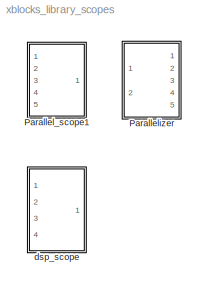
MODEL xblocks_library_scopes
KIND library
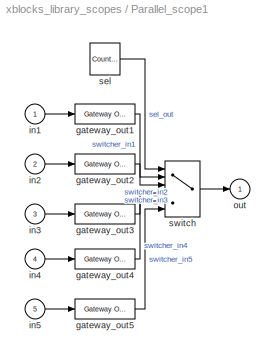
BLOCK [SubSystem] Parallel_scope1
  AttributesFormatString = Sample Period = 40
  FunctionWithSeparateData = off
  MaskHideContents = off
  MinAlgLoopOccurrences = off
  Opaque = off
  Ports = [5, 1]
  PropExecContextOutsideSubsystem = off
  RTWSystemCode = Auto
  RequestExecContextInheritance = off
  SID = 2994
  UserData = DataTag0
  UserDataPersistent = on
BLOCK [Reference] Parallel_scope1/gateway_out1  REF=xbsIndex_r4/Gateway Out
  DACChannel = '1'
  LOCs = {}
  Ports = [1, 1]
  SID = 3016
  SourceBlock = xbsIndex_r4/Gateway Out
  SourceType = Xilinx Gateway Out Block
  UseAsDAC = off
  block_type = gatewayout
  has_advanced_control = 0
  hdl_port = off
  infoedit = Gateway out block.  Converts Xilinx fixed-point or floating-point type inputs into ouputs of type Simulink integer, single, double, or fixed-point.<br><br>Hardware notes:  In hardware these blocks become top level output ports or are discarded, depending on how they are configured.  <repeated x9 — deduplicated; at blocks: gateway_out1, gateway_out2, gateway_out3, gateway_out4, gateway_out5>
  inherit_from_input = off
  locs_specified = off
  sg_icon_stat = 60,20,1,1,white,grey,1,632ec840,right,,[ ],[ ]
  sg_mask_display = fprintf('','COMMENT: begin icon graphics');\npatch([0 60 60 0 0 ],[0 0 20 20 0 ],[0.88 0.88 0.88 ]);\nplot([0 60 60 0 0 ],[0 0 20 20 0 ]);\npatch([25.55 28.44 30.44 32.44 34.44 30.44 27.55 25.55 ],[12.22 12.22 14.22 12.22 14.22 14.22 14.22 12.22 ],[1 1 1 ]);\npatch([27.55 30.44 28.44 25.55 27.55 ],[10.22 10.22 12.22 12.22 10.22 ],[0.964 0.964 0.964 ]);\npatch([25.55 28.44 30.44 27.55 25.55 ],[8.22...<+393ch>  <repeated x9 — deduplicated; at blocks: gateway_out1, gateway_out2, gateway_out3, gateway_out4, gateway_out5>
  sggui_pos = -1,-1,-1,-1
  timing_constraint = None
  xl_area = [0,0,0,0,0,0,0]
  xl_use_area = off
BLOCK [Reference] Parallel_scope1/gateway_out2  REF=xbsIndex_r4/Gateway Out
  DACChannel = '1'
  LOCs = {}
  Ports = [1, 1]
  SID = 3017
  SourceBlock = xbsIndex_r4/Gateway Out
  SourceType = Xilinx Gateway Out Block
  UseAsDAC = off
  block_type = gatewayout
  has_advanced_control = 0
  hdl_port = off
  inherit_from_input = off
  locs_specified = off
  sg_icon_stat = 60,20,1,1,white,grey,1,632ec840,right,,[ ],[ ]
  sggui_pos = -1,-1,-1,-1
  timing_constraint = None
  xl_area = [0,0,0,0,0,0,0]
  xl_use_area = off
BLOCK [Reference] Parallel_scope1/gateway_out3  REF=xbsIndex_r4/Gateway Out
  DACChannel = '1'
  LOCs = {}
  Ports = [1, 1]
  SID = 3018
  SourceBlock = xbsIndex_r4/Gateway Out
  SourceType = Xilinx Gateway Out Block
  UseAsDAC = off
  block_type = gatewayout
  has_advanced_control = 0
  hdl_port = off
  inherit_from_input = off
  locs_specified = off
  sg_icon_stat = 60,20,1,1,white,grey,1,632ec840,right,,[ ],[ ]
  sggui_pos = -1,-1,-1,-1
  timing_constraint = None
  xl_area = [0,0,0,0,0,0,0]
  xl_use_area = off
BLOCK [Reference] Parallel_scope1/gateway_out4  REF=xbsIndex_r4/Gateway Out
  DACChannel = '1'
  LOCs = {}
  Ports = [1, 1]
  SID = 3019
  SourceBlock = xbsIndex_r4/Gateway Out
  SourceType = Xilinx Gateway Out Block
  UseAsDAC = off
  block_type = gatewayout
  has_advanced_control = 0
  hdl_port = off
  inherit_from_input = off
  locs_specified = off
  sg_icon_stat = 60,20,1,1,white,grey,1,632ec840,right,,[ ],[ ]
  sggui_pos = -1,-1,-1,-1
  timing_constraint = None
  xl_area = [0,0,0,0,0,0,0]
  xl_use_area = off
BLOCK [Reference] Parallel_scope1/gateway_out5  REF=xbsIndex_r4/Gateway Out
  DACChannel = '1'
  LOCs = {}
  Ports = [1, 1]
  SID = 3020
  SourceBlock = xbsIndex_r4/Gateway Out
  SourceType = Xilinx Gateway Out Block
  UseAsDAC = off
  block_type = gatewayout
  has_advanced_control = 0
  hdl_port = off
  inherit_from_input = off
  locs_specified = off
  sg_icon_stat = 60,20,1,1,white,grey,1,632ec840,right,,[ ],[ ]
  sggui_pos = -1,-1,-1,-1
  timing_constraint = None
  xl_area = [0,0,0,0,0,0,0]
  xl_use_area = off
BLOCK [Inport] Parallel_scope1/in1
  IconDisplay = Port number
  SID = 2995
BLOCK [Inport] Parallel_scope1/in2
  IconDisplay = Port number
  Port = 2
  SID = 2996
BLOCK [Inport] Parallel_scope1/in3
  IconDisplay = Port number
  Port = 3
  SID = 2997
BLOCK [Inport] Parallel_scope1/in4
  IconDisplay = Port number
  Port = 4
  SID = 2998
BLOCK [Inport] Parallel_scope1/in5
  IconDisplay = Port number
  Port = 5
  SID = 2999
BLOCK [Outport] Parallel_scope1/out
  IconDisplay = Port number
  SID = 3007
BLOCK [Reference] Parallel_scope1/sel  REF=simulink/Sources/Counter\nLimited
  Ports = [0, 1]
  SID = 3015
  SourceBlock = simulink/Sources/Counter\nLimited
  SourceType = Counter Limited
  tsamp = 8
  uplimit = 4
BLOCK [MultiPortSwitch] Parallel_scope1/switch
  DataPortOrder = Zero-based contiguous
  InputSameDT = off
  Inputs = 5
  Ports = [6, 1]
  SID = 3021
  SaturateOnIntegerOverflow = off
  zeroidx = on
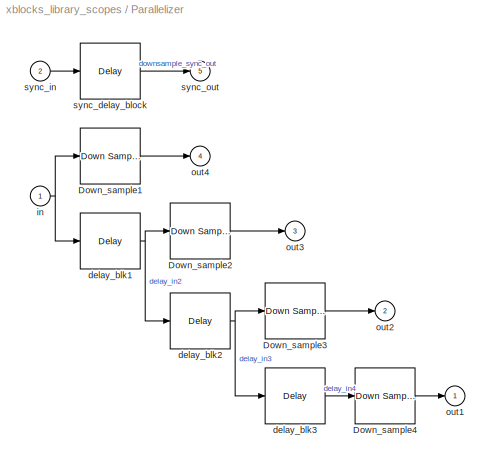
BLOCK [SubSystem] Parallelizer
  AttributesFormatString = Sample Period = 2
  FunctionWithSeparateData = off
  MaskHideContents = off
  MinAlgLoopOccurrences = off
  Opaque = off
  Ports = [2, 5]
  PropExecContextOutsideSubsystem = off
  RTWSystemCode = Auto
  RequestExecContextInheritance = off
  SID = 2900
  UserData = DataTag1
  UserDataPersistent = on
BLOCK [Reference] Parallelizer/Down_sample1  REF=xbsIndex_r4/Down Sample
  Ports = [1, 1]
  SID = 3028
  SourceBlock = xbsIndex_r4/Down Sample
  SourceType = Xilinx Down Sampler Block
  block_type = dsamp
  dbl_ovrd = off
  en = off
  has_advanced_control = 0
  infoedit = Hardware notes: Sample and Latency controls determine the hardware implementation.  The cost in hardware of different implementations varies considerably; press Help for details.
  latency = 1
  sample_phase = Last Value of Frame  (most efficient)
  sample_ratio = 4
  sg_icon_stat = 60,56,1,1,white,blue,0,475c248c,right,,[ ],[ ]
  sg_mask_display = fprintf('','COMMENT: begin icon graphics');\npatch([0 60 60 0 0 ],[0 0 56 56 0 ],[0.77 0.82 0.91 ]);\nplot([0 60 60 0 0 ],[0 0 56 56 0 ]);\npatch([12.2 23.76 31.76 39.76 47.76 31.76 20.2 12.2 ],[36.88 36.88 44.88 36.88 44.88 44.88 44.88 36.88 ],[1 1 1 ]);\npatch([20.2 31.76 23.76 12.2 20.2 ],[28.88 28.88 36.88 36.88 28.88 ],[0.931 0.946 0.973 ]);\npatch([12.2 23.76 31.76 20.2 12.2 ],[20.88 20.88 2...<+415ch>  <repeated x4 — deduplicated; at blocks: Down_sample1, Down_sample2, Down_sample3, Down_sample4>
  sggui_pos = -1,-1,-1,-1
  xl_area = [0,0,0,0,0,0,0]
  xl_use_area = off
BLOCK [Reference] Parallelizer/Down_sample2  REF=xbsIndex_r4/Down Sample
  Ports = [1, 1]
  SID = 3029
  SourceBlock = xbsIndex_r4/Down Sample
  SourceType = Xilinx Down Sampler Block
  block_type = dsamp
  dbl_ovrd = off
  en = off
  has_advanced_control = 0
  infoedit = Hardware notes: Sample and Latency controls determine the hardware implementation.  The cost in hardware of different implementations varies considerably; press Help for details.
  latency = 1
  sample_phase = Last Value of Frame  (most efficient)
  sample_ratio = 4
  sg_icon_stat = 60,56,1,1,white,blue,0,475c248c,right,,[ ],[ ]
  sggui_pos = -1,-1,-1,-1
  xl_area = [0,0,0,0,0,0,0]
  xl_use_area = off
BLOCK [Reference] Parallelizer/Down_sample3  REF=xbsIndex_r4/Down Sample
  Ports = [1, 1]
  SID = 3030
  SourceBlock = xbsIndex_r4/Down Sample
  SourceType = Xilinx Down Sampler Block
  block_type = dsamp
  dbl_ovrd = off
  en = off
  has_advanced_control = 0
  infoedit = Hardware notes: Sample and Latency controls determine the hardware implementation.  The cost in hardware of different implementations varies considerably; press Help for details.
  latency = 1
  sample_phase = Last Value of Frame  (most efficient)
  sample_ratio = 4
  sg_icon_stat = 60,56,1,1,white,blue,0,475c248c,right,,[ ],[ ]
  sggui_pos = -1,-1,-1,-1
  xl_area = [0,0,0,0,0,0,0]
  xl_use_area = off
BLOCK [Reference] Parallelizer/Down_sample4  REF=xbsIndex_r4/Down Sample
  Ports = [1, 1]
  SID = 3031
  SourceBlock = xbsIndex_r4/Down Sample
  SourceType = Xilinx Down Sampler Block
  block_type = dsamp
  dbl_ovrd = off
  en = off
  has_advanced_control = 0
  infoedit = Hardware notes: Sample and Latency controls determine the hardware implementation.  The cost in hardware of different implementations varies considerably; press Help for details.
  latency = 1
  sample_phase = Last Value of Frame  (most efficient)
  sample_ratio = 4
  sg_icon_stat = 60,56,1,1,white,blue,0,475c248c,right,,[ ],[ ]
  sggui_pos = -1,-1,-1,-1
  xl_area = [0,0,0,0,0,0,0]
  xl_use_area = off
BLOCK [Reference] Parallelizer/delay_blk1  REF=xbsIndex_r4/Delay
  Ports = [1, 1]
  SID = 3024
  SourceBlock = xbsIndex_r4/Delay
  SourceType = Xilinx Delay Block
  block_type = delay
  dbl_ovrd = off
  en = off
  has_advanced_control = 0
  infoedit = Hardware notes: A delay line is a chain, each link of which is an SRL16 followed by a flip-flop.
  infoeditControl = Selection of Reset will increase slice count due to use of real FFs and instead of SRLs
  latency = 2
  reg_retiming = off
  rst = off
  sg_icon_stat = 60,56,1,1,white,blue,0,85ce9542,right,,[ ],[ ]
  sg_mask_display = fprintf('','COMMENT: begin icon graphics');\npatch([0 60 60 0 0 ],[0 0 56 56 0 ],[0.77 0.82 0.91 ]);\nplot([0 60 60 0 0 ],[0 0 56 56 0 ]);\npatch([12.2 23.76 31.76 39.76 47.76 31.76 20.2 12.2 ],[36.88 36.88 44.88 36.88 44.88 44.88 44.88 36.88 ],[1 1 1 ]);\npatch([20.2 31.76 23.76 12.2 20.2 ],[28.88 28.88 36.88 36.88 28.88 ],[0.931 0.946 0.973 ]);\npatch([12.2 23.76 31.76 20.2 12.2 ],[20.88 20.88 2...<+320ch>  <repeated x4 — deduplicated; at blocks: delay_blk1, delay_blk2, delay_blk3, sync_delay_block>
  sggui_pos = -1,-1,-1,-1
  xl_area = [0,0,0,0,0,0,0]
  xl_use_area = off
BLOCK [Reference] Parallelizer/delay_blk2  REF=xbsIndex_r4/Delay
  Ports = [1, 1]
  SID = 3025
  SourceBlock = xbsIndex_r4/Delay
  SourceType = Xilinx Delay Block
  block_type = delay
  dbl_ovrd = off
  en = off
  has_advanced_control = 0
  infoedit = Hardware notes: A delay line is a chain, each link of which is an SRL16 followed by a flip-flop.
  infoeditControl = Selection of Reset will increase slice count due to use of real FFs and instead of SRLs
  latency = 2
  reg_retiming = off
  rst = off
  sg_icon_stat = 60,56,1,1,white,blue,0,85ce9542,right,,[ ],[ ]
  sggui_pos = -1,-1,-1,-1
  xl_area = [0,0,0,0,0,0,0]
  xl_use_area = off
BLOCK [Reference] Parallelizer/delay_blk3  REF=xbsIndex_r4/Delay
  Ports = [1, 1]
  SID = 3026
  SourceBlock = xbsIndex_r4/Delay
  SourceType = Xilinx Delay Block
  block_type = delay
  dbl_ovrd = off
  en = off
  has_advanced_control = 0
  infoedit = Hardware notes: A delay line is a chain, each link of which is an SRL16 followed by a flip-flop.
  infoeditControl = Selection of Reset will increase slice count due to use of real FFs and instead of SRLs
  latency = 2
  reg_retiming = off
  rst = off
  sg_icon_stat = 60,56,1,1,white,blue,0,85ce9542,right,,[ ],[ ]
  sggui_pos = -1,-1,-1,-1
  xl_area = [0,0,0,0,0,0,0]
  xl_use_area = off
BLOCK [Inport] Parallelizer/in
  IconDisplay = Port number
  SID = 2901
BLOCK [Outport] Parallelizer/out1
  IconDisplay = Port number
  SID = 2917
BLOCK [Outport] Parallelizer/out2
  IconDisplay = Port number
  Port = 2
  SID = 2918
BLOCK [Outport] Parallelizer/out3
  IconDisplay = Port number
  Port = 3
  SID = 2919
BLOCK [Outport] Parallelizer/out4
  IconDisplay = Port number
  Port = 4
  SID = 2920
BLOCK [Reference] Parallelizer/sync_delay_block  REF=xbsIndex_r4/Delay
  Ports = [1, 1]
  SID = 3027
  SourceBlock = xbsIndex_r4/Delay
  SourceType = Xilinx Delay Block
  block_type = delay
  dbl_ovrd = off
  en = off
  has_advanced_control = 0
  infoedit = Hardware notes: A delay line is a chain, each link of which is an SRL16 followed by a flip-flop.
  infoeditControl = Selection of Reset will increase slice count due to use of real FFs and instead of SRLs
  latency = 1
  reg_retiming = off
  rst = off
  sg_icon_stat = 60,56,1,1,white,blue,0,07b98262,right,,[ ],[ ]
  sggui_pos = -1,-1,-1,-1
  xl_area = [0,0,0,0,0,0,0]
  xl_use_area = off
BLOCK [Inport] Parallelizer/sync_in
  IconDisplay = Port number
  Port = 2
  SID = 3022
BLOCK [Outport] Parallelizer/sync_out
  IconDisplay = Port number
  Port = 5
  SID = 3023
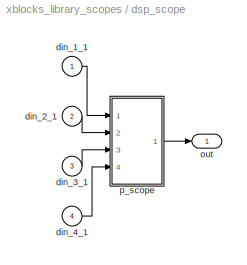
BLOCK [SubSystem] dsp_scope
  AttributesFormatString = Fix_8_7\n4 inputs\nSample Period4
  FunctionWithSeparateData = off
  MaskHideContents = off
  MinAlgLoopOccurrences = off
  Opaque = off
  Ports = [4, 1]
  PropExecContextOutsideSubsystem = off
  RTWSystemCode = Auto
  RequestExecContextInheritance = off
  SID = 17
  UserData = DataTag2
  UserDataPersistent = on
BLOCK [Inport] dsp_scope/din_1_1
  IconDisplay = Port number
  SID = 3058
BLOCK [Inport] dsp_scope/din_2_1
  IconDisplay = Port number
  Port = 2
  SID = 3059
BLOCK [Inport] dsp_scope/din_3_1
  IconDisplay = Port number
  Port = 3
  SID = 3060
BLOCK [Inport] dsp_scope/din_4_1
  IconDisplay = Port number
  Port = 4
  SID = 3061
BLOCK [Outport] dsp_scope/out
  IconDisplay = Port number
  SID = 22
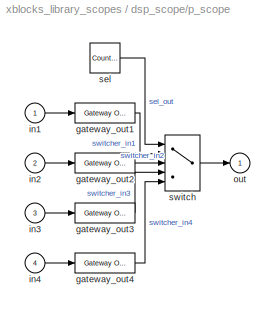
BLOCK [SubSystem] dsp_scope/p_scope
  AttributesFormatString = Sample Period = 4
  FunctionWithSeparateData = off
  MaskHideContents = off
  MinAlgLoopOccurrences = off
  Opaque = off
  Ports = [4, 1]
  PropExecContextOutsideSubsystem = off
  RTWSystemCode = Auto
  RequestExecContextInheritance = off
  SID = 3062
BLOCK [Reference] dsp_scope/p_scope/gateway_out1  REF=xbsIndex_r4/Gateway Out
  DACChannel = '1'
  LOCs = {}
  Ports = [1, 1]
  SID = 3069
  SourceBlock = xbsIndex_r4/Gateway Out
  SourceType = Xilinx Gateway Out Block
  UseAsDAC = off
  block_type = gatewayout
  has_advanced_control = 0
  hdl_port = off
  inherit_from_input = off
  locs_specified = off
  sg_icon_stat = 60,20,1,1,white,grey,1,632ec840,right,,[ ],[ ]
  sggui_pos = -1,-1,-1,-1
  timing_constraint = None
  xl_area = [0,0,0,0,0,0,0]
  xl_use_area = off
BLOCK [Reference] dsp_scope/p_scope/gateway_out2  REF=xbsIndex_r4/Gateway Out
  DACChannel = '1'
  LOCs = {}
  Ports = [1, 1]
  SID = 3070
  SourceBlock = xbsIndex_r4/Gateway Out
  SourceType = Xilinx Gateway Out Block
  UseAsDAC = off
  block_type = gatewayout
  has_advanced_control = 0
  hdl_port = off
  inherit_from_input = off
  locs_specified = off
  sg_icon_stat = 60,20,1,1,white,grey,1,632ec840,right,,[ ],[ ]
  sggui_pos = -1,-1,-1,-1
  timing_constraint = None
  xl_area = [0,0,0,0,0,0,0]
  xl_use_area = off
BLOCK [Reference] dsp_scope/p_scope/gateway_out3  REF=xbsIndex_r4/Gateway Out
  DACChannel = '1'
  LOCs = {}
  Ports = [1, 1]
  SID = 3071
  SourceBlock = xbsIndex_r4/Gateway Out
  SourceType = Xilinx Gateway Out Block
  UseAsDAC = off
  block_type = gatewayout
  has_advanced_control = 0
  hdl_port = off
  inherit_from_input = off
  locs_specified = off
  sg_icon_stat = 60,20,1,1,white,grey,1,632ec840,right,,[ ],[ ]
  sggui_pos = -1,-1,-1,-1
  timing_constraint = None
  xl_area = [0,0,0,0,0,0,0]
  xl_use_area = off
BLOCK [Reference] dsp_scope/p_scope/gateway_out4  REF=xbsIndex_r4/Gateway Out
  DACChannel = '1'
  LOCs = {}
  Ports = [1, 1]
  SID = 3072
  SourceBlock = xbsIndex_r4/Gateway Out
  SourceType = Xilinx Gateway Out Block
  UseAsDAC = off
  block_type = gatewayout
  has_advanced_control = 0
  hdl_port = off
  inherit_from_input = off
  locs_specified = off
  sg_icon_stat = 60,20,1,1,white,grey,1,632ec840,right,,[ ],[ ]
  sggui_pos = -1,-1,-1,-1
  timing_constraint = None
  xl_area = [0,0,0,0,0,0,0]
  xl_use_area = off
BLOCK [Inport] dsp_scope/p_scope/in1
  IconDisplay = Port number
  SID = 3063
BLOCK [Inport] dsp_scope/p_scope/in2
  IconDisplay = Port number
  Port = 2
  SID = 3064
BLOCK [Inport] dsp_scope/p_scope/in3
  IconDisplay = Port number
  Port = 3
  SID = 3065
BLOCK [Inport] dsp_scope/p_scope/in4
  IconDisplay = Port number
  Port = 4
  SID = 3066
BLOCK [Outport] dsp_scope/p_scope/out
  IconDisplay = Port number
  SID = 3067
BLOCK [Reference] dsp_scope/p_scope/sel  REF=simulink/Sources/Counter\nLimited
  Ports = [0, 1]
  SID = 3068
  SourceBlock = simulink/Sources/Counter\nLimited
  SourceType = Counter Limited
  tsamp = 1
  uplimit = 3
BLOCK [MultiPortSwitch] dsp_scope/p_scope/switch
  DataPortOrder = Zero-based contiguous
  InputSameDT = off
  Inputs = 4
  Ports = [5, 1]
  SID = 3073
  SaturateOnIntegerOverflow = off
  zeroidx = on
LINE Parallel_scope1/gateway_out1:1 -> Parallel_scope1/switch:2
LINE Parallel_scope1/gateway_out2:1 -> Parallel_scope1/switch:3
LINE Parallel_scope1/gateway_out3:1 -> Parallel_scope1/switch:4
LINE Parallel_scope1/gateway_out4:1 -> Parallel_scope1/switch:5
LINE Parallel_scope1/gateway_out5:1 -> Parallel_scope1/switch:6
LINE Parallel_scope1/in1:1 -> Parallel_scope1/gateway_out1:1
LINE Parallel_scope1/in2:1 -> Parallel_scope1/gateway_out2:1
LINE Parallel_scope1/in3:1 -> Parallel_scope1/gateway_out3:1
LINE Parallel_scope1/in4:1 -> Parallel_scope1/gateway_out4:1
LINE Parallel_scope1/in5:1 -> Parallel_scope1/gateway_out5:1
LINE Parallel_scope1/sel:1 -> Parallel_scope1/switch:1
LINE Parallel_scope1/switch:1 -> Parallel_scope1/out:1
LINE Parallelizer/Down_sample1:1 -> Parallelizer/out4:1
LINE Parallelizer/Down_sample2:1 -> Parallelizer/out3:1
LINE Parallelizer/Down_sample3:1 -> Parallelizer/out2:1
LINE Parallelizer/Down_sample4:1 -> Parallelizer/out1:1
NET Parallelizer/delay_blk1:1 -> Parallelizer/Down_sample2:1, Parallelizer/delay_blk2:1
NET Parallelizer/delay_blk2:1 -> Parallelizer/Down_sample3:1, Parallelizer/delay_blk3:1
LINE Parallelizer/delay_blk3:1 -> Parallelizer/Down_sample4:1
NET Parallelizer/in:1 -> Parallelizer/Down_sample1:1, Parallelizer/delay_blk1:1
LINE Parallelizer/sync_delay_block:1 -> Parallelizer/sync_out:1
LINE Parallelizer/sync_in:1 -> Parallelizer/sync_delay_block:1
LINE dsp_scope/din_1_1:1 -> dsp_scope/p_scope:1
LINE dsp_scope/din_2_1:1 -> dsp_scope/p_scope:2
LINE dsp_scope/din_3_1:1 -> dsp_scope/p_scope:3
LINE dsp_scope/din_4_1:1 -> dsp_scope/p_scope:4
LINE dsp_scope/p_scope/gateway_out1:1 -> dsp_scope/p_scope/switch:2
LINE dsp_scope/p_scope/gateway_out2:1 -> dsp_scope/p_scope/switch:3
LINE dsp_scope/p_scope/gateway_out3:1 -> dsp_scope/p_scope/switch:4
LINE dsp_scope/p_scope/gateway_out4:1 -> dsp_scope/p_scope/switch:5
LINE dsp_scope/p_scope/in1:1 -> dsp_scope/p_scope/gateway_out1:1
LINE dsp_scope/p_scope/in2:1 -> dsp_scope/p_scope/gateway_out2:1
LINE dsp_scope/p_scope/in3:1 -> dsp_scope/p_scope/gateway_out3:1
LINE dsp_scope/p_scope/in4:1 -> dsp_scope/p_scope/gateway_out4:1
LINE dsp_scope/p_scope/sel:1 -> dsp_scope/p_scope/switch:1
LINE dsp_scope/p_scope/switch:1 -> dsp_scope/p_scope/out:1
LINE dsp_scope/p_scope:1 -> dsp_scope/out:1
note: NET lines group one-source signal fan-out (src -> all destinations, sorted); 1:1 wires keep LINE
